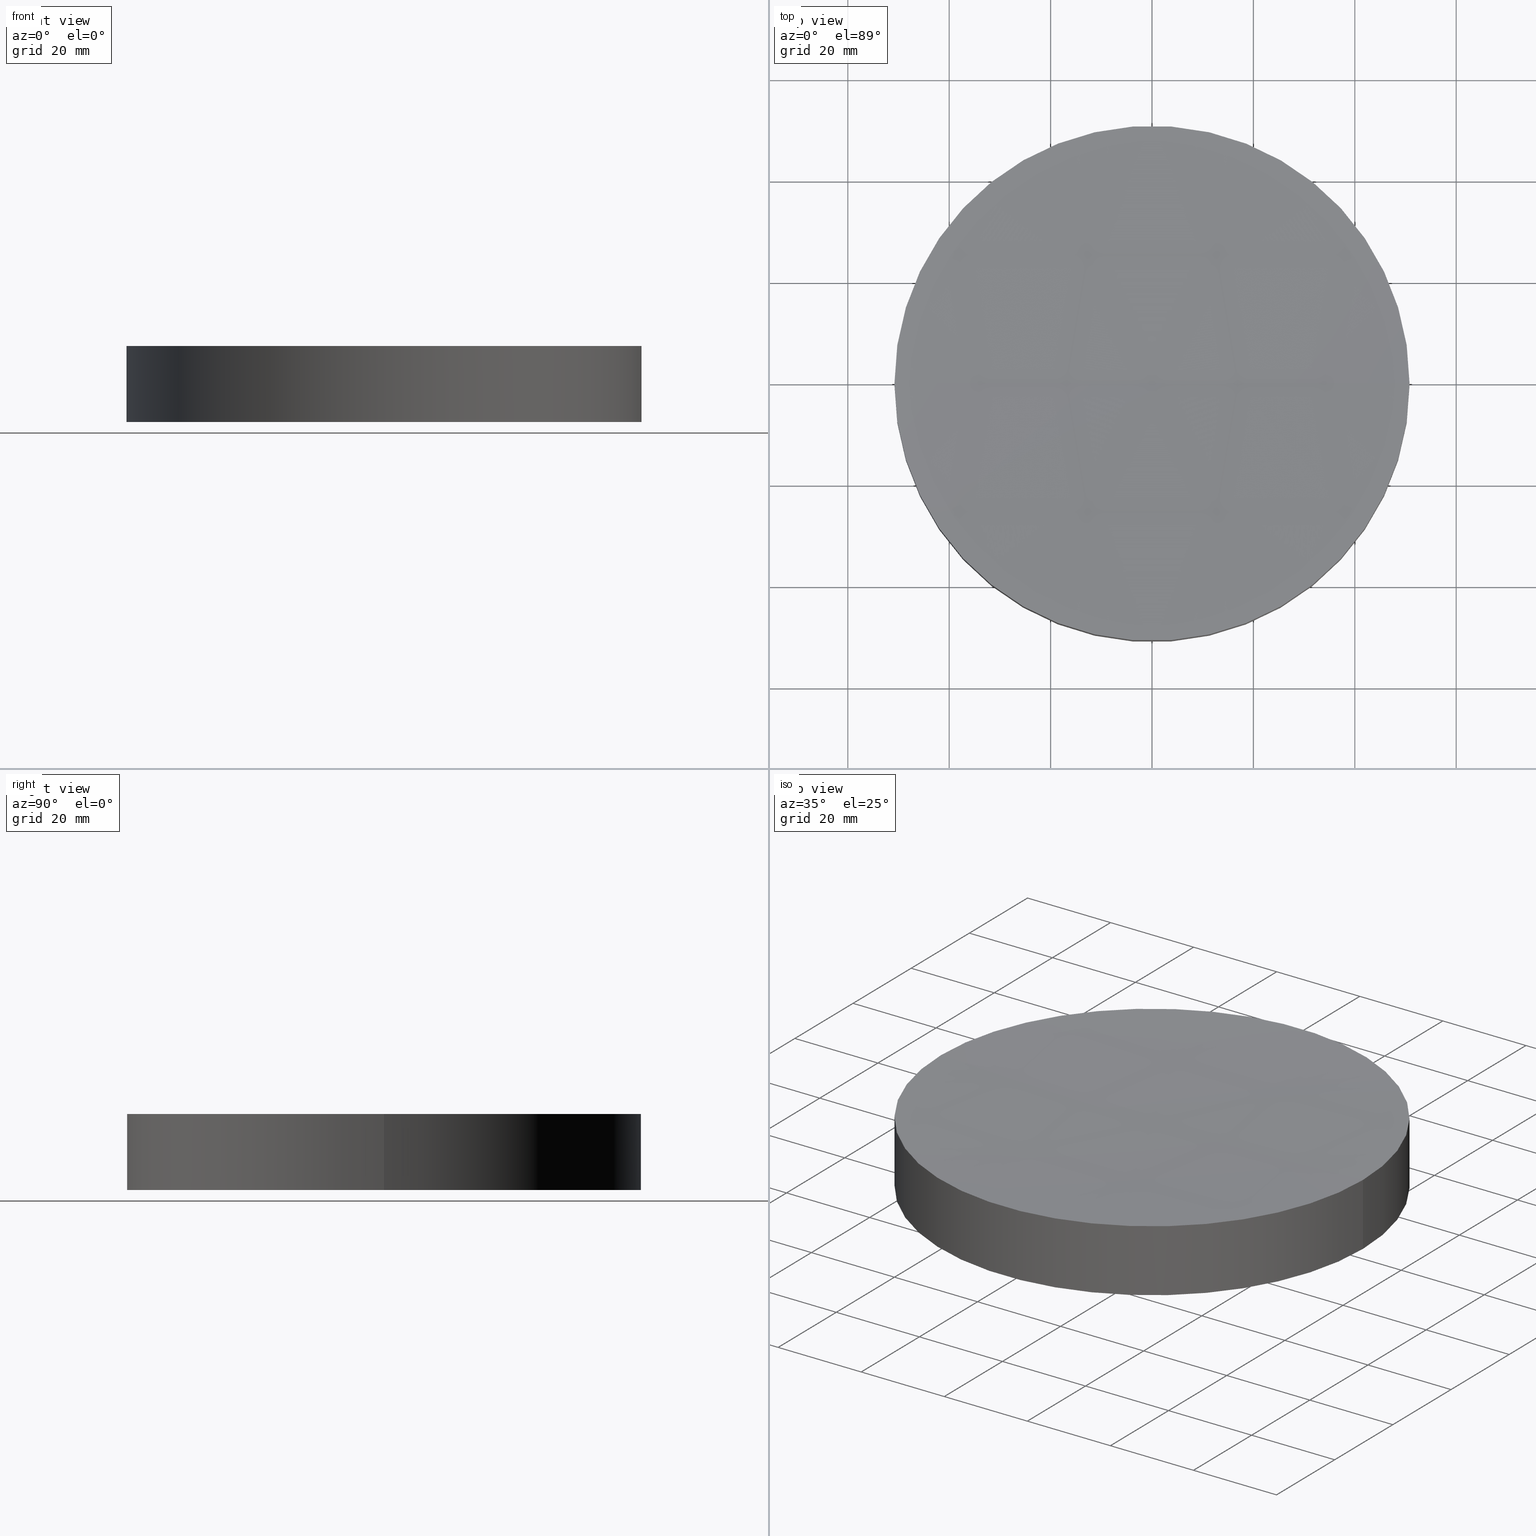
[diagram: canonical four-view strip — front | top / right | iso, engineering-drawing reading convention]
A machine part, canonical four-view strip (front | top / right | iso — engineering-drawing reading convention). The complete STEP part file that produces these views, byte-faithful:
ISO-10303-21;
HEADER;
FILE_DESCRIPTION (( 'STEP AP203' ),
    '1' );
FILE_NAME ('010-1825E_UVFS_PCV_window.STEP',
    '2021-02-26T06:28:28',
    ( '' ),
    ( '' ),
    'SwSTEP 2.0',
    'SolidWorks 2019',
    '' );
FILE_SCHEMA (( 'CONFIG_CONTROL_DESIGN' ));
ENDSEC;

DATA;
#1 = PRODUCT_DEFINITION ( 'UNKNOWN', '', #124, #131 ) ;
#2 = DIRECTION ( 'NONE',  ( 1.000000000000000000, 0.000000000000000000, 0.000000000000000000 ) ) ;
#3 = AXIS2_PLACEMENT_3D ( 'NONE', #161, #45, #119 ) ;
#4 = CLOSED_SHELL ( 'NONE', ( #43, #117, #171, #153, #32 ) ) ;
#5 = PERSON_AND_ORGANIZATION_ROLE ( 'creator' ) ;
#6 = DATE_AND_TIME ( #56, #130 ) ;
#7 = ORIENTED_EDGE ( 'NONE', *, *, #67, .T. ) ;
#8 = ORIENTED_EDGE ( 'NONE', *, *, #50, .T. ) ;
#9 = VERTEX_POINT ( 'NONE', #103 ) ;
#10 = ORIENTED_EDGE ( 'NONE', *, *, #140, .F. ) ;
#11 = CARTESIAN_POINT ( 'NONE',  ( 1.249000902703301108E-13, 0.000000000000000000, 15.00000000000001421 ) ) ;
#12 = LOCAL_TIME ( 8, 28, 28.00000000000000000, #152 ) ;
#13 = FACE_OUTER_BOUND ( 'NONE', #194, .T. ) ;
#14 = CYLINDRICAL_SURFACE ( 'NONE', #78, 50.79999999999999716 ) ;
#15 = DIRECTION ( 'NONE',  ( 1.000000000000000000, 0.000000000000000000, 0.000000000000000000 ) ) ;
#16 = CARTESIAN_POINT ( 'NONE',  ( -50.79999999999999716, 0.000000000000000000, 15.00000000000000000 ) ) ;
#17 = PRODUCT_RELATED_PRODUCT_CATEGORY ( 'detail', '', ( #189 ) ) ;
#18 =( GEOMETRIC_REPRESENTATION_CONTEXT ( 3 ) GLOBAL_UNCERTAINTY_ASSIGNED_CONTEXT ( ( #60 ) ) GLOBAL_UNIT_ASSIGNED_CONTEXT ( ( #136, #62, #164 ) ) REPRESENTATION_CONTEXT ( 'NONE', 'WORKASPACE' ) );
#19 = COORDINATED_UNIVERSAL_TIME_OFFSET ( 2, 0, .AHEAD. ) ;
#20 = CARTESIAN_POINT ( 'NONE',  ( 0.000000000000000000, 0.000000000000000000, 0.000000000000000000 ) ) ;
#21 = APPROVAL ( #148, 'UNSPECIFIED' ) ;
#22 = AXIS2_PLACEMENT_3D ( 'NONE', #137, #79, #26 ) ;
#23 = PERSON_AND_ORGANIZATION ( #81, #138 ) ;
#24 = ORIENTED_EDGE ( 'NONE', *, *, #34, .F. ) ;
#25 = DIRECTION ( 'NONE',  ( 1.000000000000000000, 0.000000000000000000, 0.000000000000000000 ) ) ;
#26 = DIRECTION ( 'NONE',  ( 1.000000000000000000, 0.000000000000000000, -0.000000000000000000 ) ) ;
#27 = CARTESIAN_POINT ( 'NONE',  ( 1.249000902703301108E-13, 0.000000000000000000, 15.00000000000001421 ) ) ;
#28 = ORIENTED_EDGE ( 'NONE', *, *, #84, .T. ) ;
#29 = DIRECTION ( 'NONE',  ( 0.000000000000000000, 0.000000000000000000, 1.000000000000000000 ) ) ;
#30 = PERSON_AND_ORGANIZATION ( #81, #138 ) ;
#31 = CARTESIAN_POINT ( 'NONE',  ( 50.80000000000143956, 6.221205739668731224E-15, 15.00000000000001421 ) ) ;
#32 = ADVANCED_FACE ( 'NONE', ( #177 ), #181, .F. ) ;
#33 = CARTESIAN_POINT ( 'NONE',  ( 0.000000000000000000, 0.000000000000000000, 0.000000000000000000 ) ) ;
#34 = EDGE_CURVE ( 'NONE', #9, #132, #112, .T. ) ;
#35 = DATE_AND_TIME ( #170, #12 ) ;
#36 = CALENDAR_DATE ( 2021, 26, 2 ) ;
#37 = SECURITY_CLASSIFICATION ( '', '', #174 ) ;
#38 = APPROVAL_DATE_TIME ( #87, #187 ) ;
#39 = MANIFOLD_SOLID_BREP ( 'Cut-Revolve1', #4 ) ;
#40 = PERSON_AND_ORGANIZATION_ROLE ( 'design_supplier' ) ;
#41 = ORIENTED_EDGE ( 'NONE', *, *, #34, .T. ) ;
#42 = ORIENTED_EDGE ( 'NONE', *, *, #188, .T. ) ;
#43 = ADVANCED_FACE ( 'NONE', ( #88 ), #178, .F. ) ;
#44 = ORIENTED_EDGE ( 'NONE', *, *, #123, .F. ) ;
#45 = DIRECTION ( 'NONE',  ( -0.000000000000000000, -0.000000000000000000, -1.000000000000000000 ) ) ;
#46 = CARTESIAN_POINT ( 'NONE',  ( 1.249000902703301108E-13, 0.000000000000000000, 1013.708846461269559 ) ) ;
#47 = DIRECTION ( 'NONE',  ( -0.000000000000000000, -0.000000000000000000, -1.000000000000000000 ) ) ;
#48 = AXIS2_PLACEMENT_3D ( 'NONE', #158, #135, #73 ) ;
#49 = ADVANCED_BREP_SHAPE_REPRESENTATION ( '010-1825E_UVFS_PCV_window', ( #39, #105 ), #18 ) ;
#50 = EDGE_CURVE ( 'NONE', #132, #133, #76, .T. ) ;
#51 = DIRECTION ( 'NONE',  ( 0.000000000000000000, 0.000000000000000000, 1.000000000000000000 ) ) ;
#52 = PERSON_AND_ORGANIZATION_ROLE ( 'design_owner' ) ;
#53 = PERSON_AND_ORGANIZATION_ROLE ( 'creator' ) ;
#54 = CC_DESIGN_PERSON_AND_ORGANIZATION_ASSIGNMENT ( #128, #156, ( #37 ) ) ;
#55 = CIRCLE ( 'NONE', #162, 50.80000000000131877 ) ;
#56 = CALENDAR_DATE ( 2021, 26, 2 ) ;
#57 = APPLICATION_CONTEXT ( 'configuration controlled 3d designs of mechanical parts and assemblies' ) ;
#58 = DATE_TIME_ROLE ( 'classification_date' ) ;
#59 = ORIENTED_EDGE ( 'NONE', *, *, #168, .T. ) ;
#60 = UNCERTAINTY_MEASURE_WITH_UNIT (LENGTH_MEASURE( 1.000000000000000082E-05 ), #136, 'distance_accuracy_value', 'NONE');
#61 = ORIENTED_EDGE ( 'NONE', *, *, #67, .F. ) ;
#62 =( NAMED_UNIT ( * ) PLANE_ANGLE_UNIT ( ) SI_UNIT ( $, .RADIAN. ) );
#63 = CC_DESIGN_PERSON_AND_ORGANIZATION_ASSIGNMENT ( #151, #53, ( #1 ) ) ;
#64 = DIRECTION ( 'NONE',  ( -1.000000000000000000, 0.000000000000000000, 0.000000000000000000 ) ) ;
#65 = APPLICATION_PROTOCOL_DEFINITION ( 'international standard', 'config_control_design', 1994, #57 ) ;
#66 = APPROVAL_STATUS ( 'not_yet_approved' ) ;
#67 = EDGE_CURVE ( 'NONE', #9, #160, #94, .T. ) ;
#68 = CALENDAR_DATE ( 2021, 26, 2 ) ;
#69 = COORDINATED_UNIVERSAL_TIME_OFFSET ( 2, 0, .AHEAD. ) ;
#70 = ORIENTED_EDGE ( 'NONE', *, *, #188, .F. ) ;
#71 = SHAPE_DEFINITION_REPRESENTATION ( #85, #49 ) ;
#72 = ORIENTED_EDGE ( 'NONE', *, *, #140, .T. ) ;
#73 = DIRECTION ( 'NONE',  ( 1.000000000000000000, 0.000000000000000000, 0.000000000000000000 ) ) ;
#74 = ORIENTED_EDGE ( 'NONE', *, *, #123, .T. ) ;
#75 = EDGE_LOOP ( 'NONE', ( #41, #8, #28, #61 ) ) ;
#76 = LINE ( 'NONE', #134, #193 ) ;
#77 = APPROVAL ( #66, 'UNSPECIFIED' ) ;
#78 = AXIS2_PLACEMENT_3D ( 'NONE', #108, #169, #64 ) ;
#79 = DIRECTION ( 'NONE',  ( 0.000000000000000000, 0.000000000000000000, 1.000000000000000000 ) ) ;
#80 = AXIS2_PLACEMENT_3D ( 'NONE', #27, #195, #25 ) ;
#81 = PERSON ( 'UNSPECIFIED', 'UNSPECIFIED', 'UNSPECIFIED', ('UNSPECIFIED'), ('UNSPECIFIED'), ('UNSPECIFIED') ) ;
#82 = CC_DESIGN_APPROVAL ( #187, ( #37 ) ) ;
#83 = DIRECTION ( 'NONE',  ( 0.000000000000000000, 0.000000000000000000, 1.000000000000000000 ) ) ;
#84 = EDGE_CURVE ( 'NONE', #133, #160, #172, .T. ) ;
#85 = PRODUCT_DEFINITION_SHAPE ( 'NONE', 'NONE',  #1 ) ;
#86 = APPROVAL_ROLE ( '' ) ;
#87 = DATE_AND_TIME ( #191, #155 ) ;
#88 = FACE_OUTER_BOUND ( 'NONE', #179, .T. ) ;
#89 = CC_DESIGN_PERSON_AND_ORGANIZATION_ASSIGNMENT ( #142, #5, ( #124 ) ) ;
#90 = AXIS2_PLACEMENT_3D ( 'NONE', #184, #51, #15 ) ;
#91 = ORIENTED_EDGE ( 'NONE', *, *, #84, .F. ) ;
#92 = DIRECTION ( 'NONE',  ( 0.000000000000000000, 1.000000000000000000, -0.000000000000000000 ) ) ;
#93 = APPROVAL_PERSON_ORGANIZATION ( #30, #21, #86 ) ;
#94 = LINE ( 'NONE', #16, #109 ) ;
#95 = FACE_OUTER_BOUND ( 'NONE', #192, .T. ) ;
#96 = CARTESIAN_POINT ( 'NONE',  ( 1.861324302276977606E-13, 0.000000000000000000, 13.70884646126968676 ) ) ;
#97 = DIRECTION ( 'NONE',  ( -0.000000000000000000, -0.000000000000000000, -1.000000000000000000 ) ) ;
#98 = APPROVAL_DATE_TIME ( #35, #77 ) ;
#99 = DATE_AND_TIME ( #36, #185 ) ;
#100 = CC_DESIGN_PERSON_AND_ORGANIZATION_ASSIGNMENT ( #186, #52, ( #189 ) ) ;
#101 = LOCAL_TIME ( 8, 28, 28.00000000000000000, #69 ) ;
#102 = APPROVAL_STATUS ( 'not_yet_approved' ) ;
#103 = CARTESIAN_POINT ( 'NONE',  ( -50.80000000000119087, 0.000000000000000000, 15.00000000000001421 ) ) ;
#104 = CARTESIAN_POINT ( 'NONE',  ( 1.249000902703301108E-13, 0.000000000000000000, 1013.708846461269559 ) ) ;
#105 = AXIS2_PLACEMENT_3D ( 'NONE', #20, #83, #2 ) ;
#106 = CARTESIAN_POINT ( 'NONE',  ( 50.79999999999999716, 6.221205739668553730E-15, 0.000000000000000000 ) ) ;
#107 = CIRCLE ( 'NONE', #126, 999.9999999999997726 ) ;
#108 = CARTESIAN_POINT ( 'NONE',  ( 0.000000000000000000, 0.000000000000000000, 15.00000000000000000 ) ) ;
#109 = VECTOR ( 'NONE', #150, 1000.000000000000000 ) ;
#110 = APPROVAL_ROLE ( '' ) ;
#111 = APPLICATION_PROTOCOL_DEFINITION ( 'international standard', 'config_control_design', 1994, #166 ) ;
#112 = CIRCLE ( 'NONE', #80, 50.80000000000131877 ) ;
#113 = AXIS2_PLACEMENT_3D ( 'NONE', #183, #167, #199 ) ;
#114 = COORDINATED_UNIVERSAL_TIME_OFFSET ( 2, 0, .AHEAD. ) ;
#115 = APPROVAL_DATE_TIME ( #129, #21 ) ;
#116 = ORIENTED_EDGE ( 'NONE', *, *, #168, .F. ) ;
#117 = ADVANCED_FACE ( 'NONE', ( #200 ), #14, .T. ) ;
#118 = VERTEX_POINT ( 'NONE', #96 ) ;
#119 = DIRECTION ( 'NONE',  ( -1.000000000000000000, 0.000000000000000000, 0.000000000000000000 ) ) ;
#120 = DIRECTION ( 'NONE',  ( 1.000000000000000000, 0.000000000000000000, 0.000000000000000000 ) ) ;
#121 = CIRCLE ( 'NONE', #90, 50.79999999999999716 ) ;
#122 = DIRECTION ( 'NONE',  ( 1.000000000000000000, 0.000000000000000000, 0.000000000000000000 ) ) ;
#123 = EDGE_CURVE ( 'NONE', #160, #133, #121, .T. ) ;
#124 = PRODUCT_DEFINITION_FORMATION_WITH_SPECIFIED_SOURCE ( 'ANY', '', #189, .NOT_KNOWN. ) ;
#125 = PERSON_AND_ORGANIZATION ( #81, #138 ) ;
#126 = AXIS2_PLACEMENT_3D ( 'NONE', #104, #92, #29 ) ;
#127 = MECHANICAL_CONTEXT ( 'NONE', #166, 'mechanical' ) ;
#128 = PERSON_AND_ORGANIZATION ( #81, #138 ) ;
#129 = DATE_AND_TIME ( #68, #101 ) ;
#130 = LOCAL_TIME ( 8, 28, 28.00000000000000000, #175 ) ;
#131 = DESIGN_CONTEXT ( 'detailed design', #57, 'design' ) ;
#132 = VERTEX_POINT ( 'NONE', #31 ) ;
#133 = VERTEX_POINT ( 'NONE', #106 ) ;
#134 = CARTESIAN_POINT ( 'NONE',  ( 50.79999999999999716, 6.221205739668553730E-15, 15.00000000000000000 ) ) ;
#135 = DIRECTION ( 'NONE',  ( 0.000000000000000000, -1.000000000000000000, -0.000000000000000000 ) ) ;
#136 =( LENGTH_UNIT ( ) NAMED_UNIT ( * ) SI_UNIT ( .MILLI., .METRE. ) );
#137 = CARTESIAN_POINT ( 'NONE',  ( 0.000000000000000000, 0.000000000000000000, 0.000000000000000000 ) ) ;
#138 = ORGANIZATION ( 'UNSPECIFIED', 'UNSPECIFIED', '' ) ;
#139 = DIRECTION ( 'NONE',  ( 0.000000000000000000, 0.000000000000000000, 1.000000000000000000 ) ) ;
#140 = EDGE_CURVE ( 'NONE', #9, #118, #201, .T. ) ;
#141 = CC_DESIGN_APPROVAL ( #21, ( #124 ) ) ;
#142 = PERSON_AND_ORGANIZATION ( #81, #138 ) ;
#143 = PERSON_AND_ORGANIZATION ( #81, #138 ) ;
#144 = DIRECTION ( 'NONE',  ( 0.000000000000000000, -1.000000000000000000, -0.000000000000000000 ) ) ;
#145 = AXIS2_PLACEMENT_3D ( 'NONE', #46, #144, #120 ) ;
#146 = CARTESIAN_POINT ( 'NONE',  ( -50.79999999999999716, 0.000000000000000000, 0.000000000000000000 ) ) ;
#147 = APPROVAL_PERSON_ORGANIZATION ( #143, #187, #157 ) ;
#148 = APPROVAL_STATUS ( 'not_yet_approved' ) ;
#149 = PLANE ( 'NONE',  #22 ) ;
#150 = DIRECTION ( 'NONE',  ( -0.000000000000000000, -0.000000000000000000, -1.000000000000000000 ) ) ;
#151 = PERSON_AND_ORGANIZATION ( #81, #138 ) ;
#152 = COORDINATED_UNIVERSAL_TIME_OFFSET ( 2, 0, .AHEAD. ) ;
#153 = ADVANCED_FACE ( 'NONE', ( #95 ), #149, .F. ) ;
#154 = AXIS2_PLACEMENT_3D ( 'NONE', #33, #139, #122 ) ;
#155 = LOCAL_TIME ( 8, 28, 28.00000000000000000, #114 ) ;
#156 = PERSON_AND_ORGANIZATION_ROLE ( 'classification_officer' ) ;
#157 = APPROVAL_ROLE ( '' ) ;
#158 = CARTESIAN_POINT ( 'NONE',  ( 1.249000902703301108E-13, 0.000000000000000000, 1013.708846461269559 ) ) ;
#159 = ORIENTED_EDGE ( 'NONE', *, *, #50, .F. ) ;
#160 = VERTEX_POINT ( 'NONE', #146 ) ;
#161 = CARTESIAN_POINT ( 'NONE',  ( 0.000000000000000000, 0.000000000000000000, 15.00000000000000000 ) ) ;
#162 = AXIS2_PLACEMENT_3D ( 'NONE', #11, #47, #198 ) ;
#163 = CC_DESIGN_DATE_AND_TIME_ASSIGNMENT ( #99, #182, ( #1 ) ) ;
#164 =( NAMED_UNIT ( * ) SI_UNIT ( $, .STERADIAN. ) SOLID_ANGLE_UNIT ( ) );
#165 = APPROVAL_PERSON_ORGANIZATION ( #125, #77, #110 ) ;
#166 = APPLICATION_CONTEXT ( 'configuration controlled 3d designs of mechanical parts and assemblies' ) ;
#167 = DIRECTION ( 'NONE',  ( 1.224646799147353207E-16, -1.000000000000000000, 0.000000000000000000 ) ) ;
#168 = EDGE_CURVE ( 'NONE', #132, #9, #55, .T. ) ;
#169 = DIRECTION ( 'NONE',  ( -0.000000000000000000, -0.000000000000000000, -1.000000000000000000 ) ) ;
#170 = CALENDAR_DATE ( 2021, 26, 2 ) ;
#171 = ADVANCED_FACE ( 'NONE', ( #13 ), #196, .T. ) ;
#172 = CIRCLE ( 'NONE', #154, 50.79999999999999716 ) ;
#173 = CC_DESIGN_APPROVAL ( #77, ( #1 ) ) ;
#174 = SECURITY_CLASSIFICATION_LEVEL ( 'unclassified' ) ;
#175 = COORDINATED_UNIVERSAL_TIME_OFFSET ( 2, 0, .AHEAD. ) ;
#176 = EDGE_LOOP ( 'NONE', ( #10, #116, #42 ) ) ;
#177 = FACE_OUTER_BOUND ( 'NONE', #176, .T. ) ;
#178 = SPHERICAL_SURFACE ( 'NONE', #48, 999.9999999999998863 ) ;
#179 = EDGE_LOOP ( 'NONE', ( #24, #72, #70 ) ) ;
#180 = CC_DESIGN_PERSON_AND_ORGANIZATION_ASSIGNMENT ( #23, #40, ( #124 ) ) ;
#181 = SPHERICAL_SURFACE ( 'NONE', #145, 999.9999999999998863 ) ;
#182 = DATE_TIME_ROLE ( 'creation_date' ) ;
#183 = CARTESIAN_POINT ( 'NONE',  ( 1.249000902703301108E-13, 0.000000000000000000, 1013.708846461269559 ) ) ;
#184 = CARTESIAN_POINT ( 'NONE',  ( 0.000000000000000000, 0.000000000000000000, 0.000000000000000000 ) ) ;
#185 = LOCAL_TIME ( 8, 28, 28.00000000000000000, #19 ) ;
#186 = PERSON_AND_ORGANIZATION ( #81, #138 ) ;
#187 = APPROVAL ( #102, 'UNSPECIFIED' ) ;
#188 = EDGE_CURVE ( 'NONE', #132, #118, #107, .T. ) ;
#189 = PRODUCT ( '010-1825E_UVFS_PCV_window', '010-1825E_UVFS_PCV_window', '', ( #127 ) ) ;
#190 = CC_DESIGN_SECURITY_CLASSIFICATION ( #37, ( #124 ) ) ;
#191 = CALENDAR_DATE ( 2021, 26, 2 ) ;
#192 = EDGE_LOOP ( 'NONE', ( #44, #91 ) ) ;
#193 = VECTOR ( 'NONE', #97, 1000.000000000000000 ) ;
#194 = EDGE_LOOP ( 'NONE', ( #159, #59, #7, #74 ) ) ;
#195 = DIRECTION ( 'NONE',  ( -0.000000000000000000, -0.000000000000000000, -1.000000000000000000 ) ) ;
#196 = CYLINDRICAL_SURFACE ( 'NONE', #3, 50.79999999999999716 ) ;
#197 = CC_DESIGN_DATE_AND_TIME_ASSIGNMENT ( #6, #58, ( #37 ) ) ;
#198 = DIRECTION ( 'NONE',  ( 1.000000000000000000, 0.000000000000000000, 0.000000000000000000 ) ) ;
#199 = DIRECTION ( 'NONE',  ( 1.000000000000000000, 1.224646799147353207E-16, 0.000000000000000000 ) ) ;
#200 = FACE_OUTER_BOUND ( 'NONE', #75, .T. ) ;
#201 = CIRCLE ( 'NONE', #113, 999.9999999999998863 ) ;
ENDSEC;
END-ISO-10303-21;
